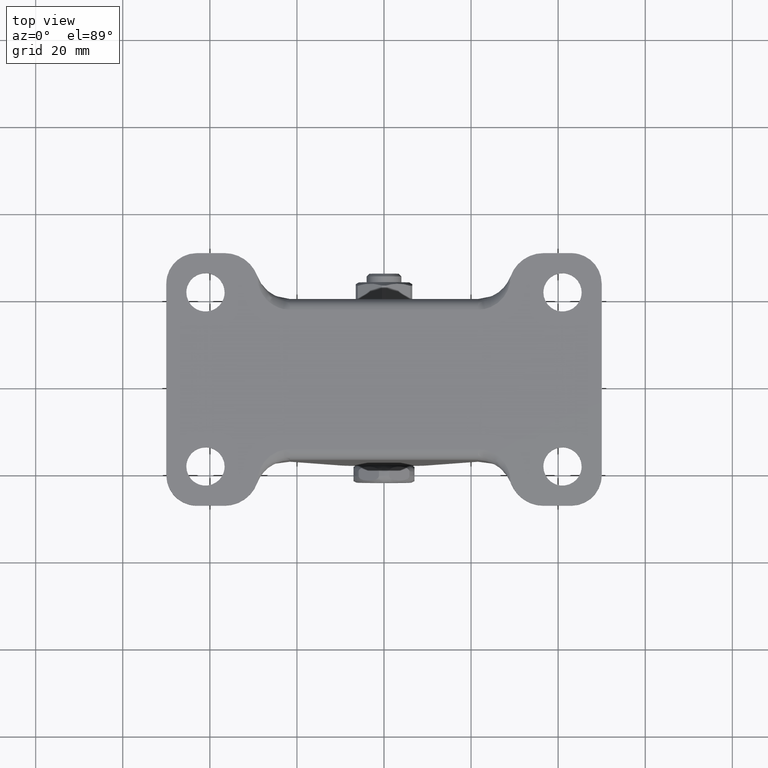
[diagram: clean part render]
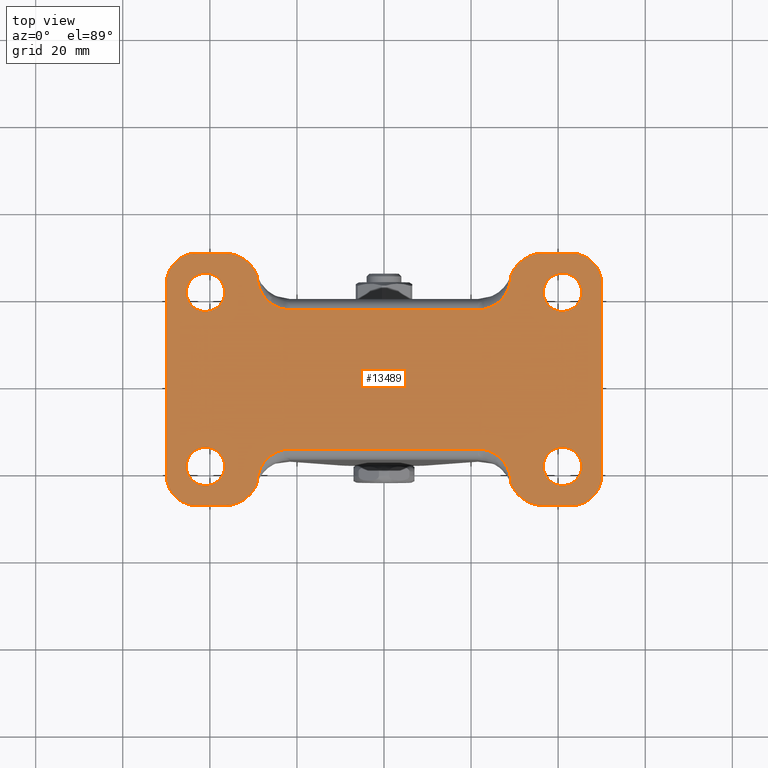
[diagram: same view with one face highlighted and labeled with its STEP entity id]
A machine part, top view. The second image highlights one B-rep face of the part: STEP entity #13489.
In plain terms, the highlighted face is a freeform B-spline surface patch.
Its self-contained STEP definition (entity closure, byte-faithful):
#10638=CARTESIAN_POINT('',(40.480649355666593,15.630757984703701,72.0));
#10639=VERTEX_POINT('',#10638);
#10645=CARTESIAN_POINT('',(45.400000100000007,20.0,72.0));
#10646=VERTEX_POINT('',#10645);
#10647=CARTESIAN_POINT('',(40.480649355666586,15.630757984703703,71.999999999999986));
#10648=CARTESIAN_POINT('',(40.739413867568501,15.599999900000006,72.0));
#10649=CARTESIAN_POINT('',(41.0,15.599999900000000,72.0));
#10650=CARTESIAN_POINT('',(45.400000100000014,15.599999900000011,72.0));
#10651=CARTESIAN_POINT('',(45.400000100000007,20.0,72.0));
#10659=(BOUNDED_CURVE()B_SPLINE_CURVE(2,(#10647,#10648,#10649,#10650,#10651),.UNSPECIFIED.,.F.,.U.)B_SPLINE_CURVE_WITH_KNOTS((3,2,3),(0.229562473512530,0.250000000000000,0.500000000000000),.UNSPECIFIED.)CURVE()GEOMETRIC_REPRESENTATION_ITEM()RATIONAL_B_SPLINE_CURVE((0.956026754181782,0.976055948329999,1.0,0.707106781186547,1.0))REPRESENTATION_ITEM(''));
#10660=EDGE_CURVE('',#10639,#10646,#10659,.T.);
#10662=CARTESIAN_POINT('',(41.268613580939807,24.391793212815770,72.000000000000014));
#10663=VERTEX_POINT('',#10662);
#10664=CARTESIAN_POINT('',(45.400000100000007,20.0,72.0));
#10665=CARTESIAN_POINT('',(45.400000100000000,24.139106786790830,72.0));
#10666=CARTESIAN_POINT('',(41.268613580939814,24.391793212815770,72.000000000000014));
#10674=(BOUNDED_CURVE()B_SPLINE_CURVE(2,(#10664,#10665,#10666),.UNSPECIFIED.,.F.,.U.)B_SPLINE_CURVE_WITH_KNOTS((3,3),(0.500000000000000,0.739332962172696),.UNSPECIFIED.)CURVE()GEOMETRIC_REPRESENTATION_ITEM()RATIONAL_B_SPLINE_CURVE((1.0,0.719603993364323,0.976072041524738))REPRESENTATION_ITEM(''));
#10675=EDGE_CURVE('',#10646,#10663,#10674,.T.);
#10749=CARTESIAN_POINT('',(36.599999900000000,20.0,72.0));
#10750=VERTEX_POINT('',#10749);
#10751=CARTESIAN_POINT('',(41.268613580939807,24.391793212815777,72.000000000000014));
#10752=CARTESIAN_POINT('',(41.134432162453123,24.400000100000000,72.0));
#10753=CARTESIAN_POINT('',(41.0,24.400000100000000,72.0));
#10754=CARTESIAN_POINT('',(36.599999900000000,24.400000100000007,72.0));
#10755=CARTESIAN_POINT('',(36.599999900000000,20.0,72.0));
#10763=(BOUNDED_CURVE()B_SPLINE_CURVE(2,(#10751,#10752,#10753,#10754,#10755),.UNSPECIFIED.,.F.,.U.)B_SPLINE_CURVE_WITH_KNOTS((3,2,3),(0.739332962172696,0.750000000000000,1.0),.UNSPECIFIED.)CURVE()GEOMETRIC_REPRESENTATION_ITEM()RATIONAL_B_SPLINE_CURVE((0.976072041524739,0.987502787822225,1.0,0.707106781186547,1.0))REPRESENTATION_ITEM(''));
#10764=EDGE_CURVE('',#10663,#10750,#10763,.T.);
#10766=CARTESIAN_POINT('',(36.599999900000000,20.0,72.0));
#10767=CARTESIAN_POINT('',(36.599999899999993,16.092031997069046,72.0));
#10768=CARTESIAN_POINT('',(40.480649355666593,15.630757984703697,72.0));
#10776=(BOUNDED_CURVE()B_SPLINE_CURVE(2,(#10766,#10767,#10768),.UNSPECIFIED.,.F.,.U.)B_SPLINE_CURVE_WITH_KNOTS((3,3),(0.0,0.229562473512530),.UNSPECIFIED.)CURVE()GEOMETRIC_REPRESENTATION_ITEM()RATIONAL_B_SPLINE_CURVE((1.0,0.731050832856548,0.956026754181782))REPRESENTATION_ITEM(''));
#10777=EDGE_CURVE('',#10750,#10639,#10776,.T.);
#10824=CARTESIAN_POINT('',(-41.519350644333407,15.630757984703701,72.000000000000014));
#10825=VERTEX_POINT('',#10824);
#10831=CARTESIAN_POINT('',(-36.599999900000000,20.0,72.0));
#10832=VERTEX_POINT('',#10831);
#10833=CARTESIAN_POINT('',(-41.519350644333414,15.630757984703703,72.000000000000014));
#10834=CARTESIAN_POINT('',(-41.260586132431492,15.599999900000006,72.0));
#10835=CARTESIAN_POINT('',(-41.0,15.599999900000000,72.0));
#10836=CARTESIAN_POINT('',(-36.599999900000000,15.599999900000011,72.0));
#10837=CARTESIAN_POINT('',(-36.599999900000000,20.0,72.0));
#10845=(BOUNDED_CURVE()B_SPLINE_CURVE(2,(#10833,#10834,#10835,#10836,#10837),.UNSPECIFIED.,.F.,.U.)B_SPLINE_CURVE_WITH_KNOTS((3,2,3),(0.229562473512530,0.250000000000000,0.500000000000000),.UNSPECIFIED.)CURVE()GEOMETRIC_REPRESENTATION_ITEM()RATIONAL_B_SPLINE_CURVE((0.956026754181782,0.976055948329999,1.0,0.707106781186547,1.0))REPRESENTATION_ITEM(''));
#10846=EDGE_CURVE('',#10825,#10832,#10845,.T.);
#10848=CARTESIAN_POINT('',(-40.731386419060200,24.391793212815770,72.0));
#10849=VERTEX_POINT('',#10848);
#10850=CARTESIAN_POINT('',(-36.599999900000000,20.0,72.0));
#10851=CARTESIAN_POINT('',(-36.599999899999993,24.139106786790830,72.0));
#10852=CARTESIAN_POINT('',(-40.731386419060200,24.391793212815770,72.0));
#10860=(BOUNDED_CURVE()B_SPLINE_CURVE(2,(#10850,#10851,#10852),.UNSPECIFIED.,.F.,.U.)B_SPLINE_CURVE_WITH_KNOTS((3,3),(0.500000000000000,0.739332962172696),.UNSPECIFIED.)CURVE()GEOMETRIC_REPRESENTATION_ITEM()RATIONAL_B_SPLINE_CURVE((1.0,0.719603993364323,0.976072041524738))REPRESENTATION_ITEM(''));
#10861=EDGE_CURVE('',#10832,#10849,#10860,.T.);
#10935=CARTESIAN_POINT('',(-45.400000100000007,20.0,72.0));
#10936=VERTEX_POINT('',#10935);
#10937=CARTESIAN_POINT('',(-40.731386419060208,24.391793212815777,72.0));
#10938=CARTESIAN_POINT('',(-40.865567837546877,24.400000100000000,72.0));
#10939=CARTESIAN_POINT('',(-41.0,24.400000100000000,72.0));
#10940=CARTESIAN_POINT('',(-45.400000100000014,24.400000100000007,72.0));
#10941=CARTESIAN_POINT('',(-45.400000100000007,20.0,72.0));
#10949=(BOUNDED_CURVE()B_SPLINE_CURVE(2,(#10937,#10938,#10939,#10940,#10941),.UNSPECIFIED.,.F.,.U.)B_SPLINE_CURVE_WITH_KNOTS((3,2,3),(0.739332962172696,0.750000000000000,1.0),.UNSPECIFIED.)CURVE()GEOMETRIC_REPRESENTATION_ITEM()RATIONAL_B_SPLINE_CURVE((0.976072041524739,0.987502787822225,1.0,0.707106781186547,1.0))REPRESENTATION_ITEM(''));
#10950=EDGE_CURVE('',#10849,#10936,#10949,.T.);
#10952=CARTESIAN_POINT('',(-45.400000100000007,20.0,72.0));
#10953=CARTESIAN_POINT('',(-45.400000100000000,16.092031997069046,72.0));
#10954=CARTESIAN_POINT('',(-41.519350644333414,15.630757984703697,72.000000000000014));
#10962=(BOUNDED_CURVE()B_SPLINE_CURVE(2,(#10952,#10953,#10954),.UNSPECIFIED.,.F.,.U.)B_SPLINE_CURVE_WITH_KNOTS((3,3),(0.0,0.229562473512530),.UNSPECIFIED.)CURVE()GEOMETRIC_REPRESENTATION_ITEM()RATIONAL_B_SPLINE_CURVE((1.0,0.731050832856548,0.956026754181782))REPRESENTATION_ITEM(''));
#10963=EDGE_CURVE('',#10936,#10825,#10962,.T.);
#11010=CARTESIAN_POINT('',(-41.519350644333407,-24.369242015296301,72.0));
#11011=VERTEX_POINT('',#11010);
#11017=CARTESIAN_POINT('',(-36.599999900000000,-20.0,72.0));
#11018=VERTEX_POINT('',#11017);
#11019=CARTESIAN_POINT('',(-41.519350644333414,-24.369242015296301,71.999999999999986));
#11020=CARTESIAN_POINT('',(-41.260586132431492,-24.400000100000003,71.999999999999986));
#11021=CARTESIAN_POINT('',(-41.0,-24.400000100000000,72.0));
#11022=CARTESIAN_POINT('',(-36.599999900000000,-24.400000100000007,72.0));
#11023=CARTESIAN_POINT('',(-36.599999900000000,-20.0,72.0));
#11031=(BOUNDED_CURVE()B_SPLINE_CURVE(2,(#11019,#11020,#11021,#11022,#11023),.UNSPECIFIED.,.F.,.U.)B_SPLINE_CURVE_WITH_KNOTS((3,2,3),(0.229562473512530,0.250000000000000,0.500000000000000),.UNSPECIFIED.)CURVE()GEOMETRIC_REPRESENTATION_ITEM()RATIONAL_B_SPLINE_CURVE((0.956026754181782,0.976055948329999,1.0,0.707106781186547,1.0))REPRESENTATION_ITEM(''));
#11032=EDGE_CURVE('',#11011,#11018,#11031,.T.);
#11034=CARTESIAN_POINT('',(-40.731386419060200,-15.608206787184230,72.000000000000014));
#11035=VERTEX_POINT('',#11034);
#11036=CARTESIAN_POINT('',(-36.599999900000000,-20.0,72.0));
#11037=CARTESIAN_POINT('',(-36.599999899999993,-15.860893213209179,72.0));
#11038=CARTESIAN_POINT('',(-40.731386419060200,-15.608206787184232,72.000000000000014));
#11046=(BOUNDED_CURVE()B_SPLINE_CURVE(2,(#11036,#11037,#11038),.UNSPECIFIED.,.F.,.U.)B_SPLINE_CURVE_WITH_KNOTS((3,3),(0.500000000000000,0.739332962172696),.UNSPECIFIED.)CURVE()GEOMETRIC_REPRESENTATION_ITEM()RATIONAL_B_SPLINE_CURVE((1.0,0.719603993364323,0.976072041524738))REPRESENTATION_ITEM(''));
#11047=EDGE_CURVE('',#11018,#11035,#11046,.T.);
#11121=CARTESIAN_POINT('',(-45.400000100000007,-20.0,72.0));
#11122=VERTEX_POINT('',#11121);
#11123=CARTESIAN_POINT('',(-40.731386419060208,-15.608206787184226,72.000000000000014));
#11124=CARTESIAN_POINT('',(-40.865567837546877,-15.599999900000006,72.0));
#11125=CARTESIAN_POINT('',(-41.0,-15.599999900000000,72.0));
#11126=CARTESIAN_POINT('',(-45.400000100000014,-15.599999900000011,72.0));
#11127=CARTESIAN_POINT('',(-45.400000100000007,-20.0,72.0));
#11135=(BOUNDED_CURVE()B_SPLINE_CURVE(2,(#11123,#11124,#11125,#11126,#11127),.UNSPECIFIED.,.F.,.U.)B_SPLINE_CURVE_WITH_KNOTS((3,2,3),(0.739332962172696,0.750000000000000,1.0),.UNSPECIFIED.)CURVE()GEOMETRIC_REPRESENTATION_ITEM()RATIONAL_B_SPLINE_CURVE((0.976072041524739,0.987502787822225,1.0,0.707106781186547,1.0))REPRESENTATION_ITEM(''));
#11136=EDGE_CURVE('',#11035,#11122,#11135,.T.);
#11138=CARTESIAN_POINT('',(-45.400000100000007,-20.0,72.0));
#11139=CARTESIAN_POINT('',(-45.400000100000000,-23.907968002930964,72.0));
#11140=CARTESIAN_POINT('',(-41.519350644333414,-24.369242015296308,72.0));
#11148=(BOUNDED_CURVE()B_SPLINE_CURVE(2,(#11138,#11139,#11140),.UNSPECIFIED.,.F.,.U.)B_SPLINE_CURVE_WITH_KNOTS((3,3),(0.0,0.229562473512530),.UNSPECIFIED.)CURVE()GEOMETRIC_REPRESENTATION_ITEM()RATIONAL_B_SPLINE_CURVE((1.0,0.731050832856548,0.956026754181782))REPRESENTATION_ITEM(''));
#11149=EDGE_CURVE('',#11122,#11011,#11148,.T.);
#11196=CARTESIAN_POINT('',(40.480649355666593,-24.369242015296301,72.0));
#11197=VERTEX_POINT('',#11196);
#11203=CARTESIAN_POINT('',(45.400000100000007,-20.0,72.0));
#11204=VERTEX_POINT('',#11203);
#11205=CARTESIAN_POINT('',(40.480649355666586,-24.369242015296301,71.999999999999986));
#11206=CARTESIAN_POINT('',(40.739413867568501,-24.400000100000003,72.0));
#11207=CARTESIAN_POINT('',(41.0,-24.400000100000000,72.0));
#11208=CARTESIAN_POINT('',(45.400000100000014,-24.400000100000007,72.0));
#11209=CARTESIAN_POINT('',(45.400000100000007,-20.0,72.0));
#11217=(BOUNDED_CURVE()B_SPLINE_CURVE(2,(#11205,#11206,#11207,#11208,#11209),.UNSPECIFIED.,.F.,.U.)B_SPLINE_CURVE_WITH_KNOTS((3,2,3),(0.229562473512530,0.250000000000000,0.500000000000000),.UNSPECIFIED.)CURVE()GEOMETRIC_REPRESENTATION_ITEM()RATIONAL_B_SPLINE_CURVE((0.956026754181782,0.976055948329999,1.0,0.707106781186547,1.0))REPRESENTATION_ITEM(''));
#11218=EDGE_CURVE('',#11197,#11204,#11217,.T.);
#11220=CARTESIAN_POINT('',(41.268613580939807,-15.608206787184230,72.000000000000028));
#11221=VERTEX_POINT('',#11220);
#11222=CARTESIAN_POINT('',(45.400000100000007,-20.0,72.0));
#11223=CARTESIAN_POINT('',(45.400000100000000,-15.860893213209179,72.0));
#11224=CARTESIAN_POINT('',(41.268613580939814,-15.608206787184232,72.000000000000028));
#11232=(BOUNDED_CURVE()B_SPLINE_CURVE(2,(#11222,#11223,#11224),.UNSPECIFIED.,.F.,.U.)B_SPLINE_CURVE_WITH_KNOTS((3,3),(0.500000000000000,0.739332962172696),.UNSPECIFIED.)CURVE()GEOMETRIC_REPRESENTATION_ITEM()RATIONAL_B_SPLINE_CURVE((1.0,0.719603993364323,0.976072041524738))REPRESENTATION_ITEM(''));
#11233=EDGE_CURVE('',#11204,#11221,#11232,.T.);
#11307=CARTESIAN_POINT('',(36.599999900000000,-20.0,72.0));
#11308=VERTEX_POINT('',#11307);
#11309=CARTESIAN_POINT('',(41.268613580939807,-15.608206787184226,72.000000000000028));
#11310=CARTESIAN_POINT('',(41.134432162453123,-15.599999900000006,72.0));
#11311=CARTESIAN_POINT('',(41.0,-15.599999900000000,72.0));
#11312=CARTESIAN_POINT('',(36.599999900000000,-15.599999900000011,72.0));
#11313=CARTESIAN_POINT('',(36.599999900000000,-20.0,72.0));
#11321=(BOUNDED_CURVE()B_SPLINE_CURVE(2,(#11309,#11310,#11311,#11312,#11313),.UNSPECIFIED.,.F.,.U.)B_SPLINE_CURVE_WITH_KNOTS((3,2,3),(0.739332962172696,0.750000000000000,1.0),.UNSPECIFIED.)CURVE()GEOMETRIC_REPRESENTATION_ITEM()RATIONAL_B_SPLINE_CURVE((0.976072041524739,0.987502787822225,1.0,0.707106781186547,1.0))REPRESENTATION_ITEM(''));
#11322=EDGE_CURVE('',#11221,#11308,#11321,.T.);
#11324=CARTESIAN_POINT('',(36.599999900000000,-20.0,72.0));
#11325=CARTESIAN_POINT('',(36.599999899999993,-23.907968002930964,72.0));
#11326=CARTESIAN_POINT('',(40.480649355666593,-24.369242015296308,72.0));
#11334=(BOUNDED_CURVE()B_SPLINE_CURVE(2,(#11324,#11325,#11326),.UNSPECIFIED.,.F.,.U.)B_SPLINE_CURVE_WITH_KNOTS((3,3),(0.0,0.229562473512530),.UNSPECIFIED.)CURVE()GEOMETRIC_REPRESENTATION_ITEM()RATIONAL_B_SPLINE_CURVE((1.0,0.731050832856548,0.956026754181782))REPRESENTATION_ITEM(''));
#11335=EDGE_CURVE('',#11308,#11197,#11334,.T.);
#12123=CARTESIAN_POINT('',(-21.590020549778849,-15.999980000000001,72.0));
#12124=VERTEX_POINT('',#12123);
#12138=CARTESIAN_POINT('',(-29.102518009696151,-23.749993471923052,72.0));
#12139=VERTEX_POINT('',#12138);
#12140=CARTESIAN_POINT('',(-29.102518009696151,-23.749993471923052,72.0));
#12141=CARTESIAN_POINT('',(-29.124434196517711,-22.367632242303991,72.0));
#12142=CARTESIAN_POINT('',(-28.657625978807619,-21.061308647487991,72.0));
#12143=CARTESIAN_POINT('',(-28.154351266947650,-19.652936631241221,72.0));
#12144=CARTESIAN_POINT('',(-27.157142996489860,-18.533722371588961,72.0));
#12145=CARTESIAN_POINT('',(-26.122198754784449,-17.372155237042499,72.0));
#12146=CARTESIAN_POINT('',(-24.675544332181069,-16.698311954679820,72.0));
#12147=CARTESIAN_POINT('',(-23.176782604990208,-16.000197390517091,72.0));
#12148=CARTESIAN_POINT('',(-21.590020549778849,-15.999980000000001,72.0));
#12149=B_SPLINE_CURVE_WITH_KNOTS('',2,(#12140,#12141,#12142,#12143,#12144,#12145,#12146,#12147,#12148),.UNSPECIFIED.,.F.,.U.,(3,2,2,2,3),(0.000000105877122,0.250000000000000,0.500000000000000,0.750000000000000,1.0),.UNSPECIFIED.);
#12150=EDGE_CURVE('',#12139,#12124,#12149,.T.);
#12197=CARTESIAN_POINT('',(21.590029450221252,-15.999980000000001,72.0));
#12198=VERTEX_POINT('',#12197);
#12212=CARTESIAN_POINT('',(-21.590020549778849,-15.999980000000001,72.0));
#12213=CARTESIAN_POINT('',(21.590029450221252,-15.999980000000001,72.0));
#12214=QUASI_UNIFORM_CURVE('',1,(#12212,#12213),.UNSPECIFIED.,.F.,.U.);
#12215=EDGE_CURVE('',#12124,#12198,#12214,.T.);
#12258=CARTESIAN_POINT('',(29.102521846314598,-23.749986134723851,72.0));
#12259=VERTEX_POINT('',#12258);
#12289=CARTESIAN_POINT('',(21.590029450221252,-15.999980000000001,72.0));
#12290=CARTESIAN_POINT('',(23.175862889890801,-16.000197092444150,72.0));
#12291=CARTESIAN_POINT('',(24.675550057504100,-16.698310812313998,72.0));
#12292=CARTESIAN_POINT('',(26.120715125961102,-17.371044155343199,72.0));
#12293=CARTESIAN_POINT('',(27.157146486000251,-18.533718920057652,72.0));
#12294=CARTESIAN_POINT('',(28.153448112101749,-19.651375914408401,72.0));
#12295=CARTESIAN_POINT('',(28.657628827638352,-21.061302455086949,72.0));
#12296=CARTESIAN_POINT('',(29.124451102283299,-22.366757214699000,72.0));
#12297=CARTESIAN_POINT('',(29.102521846314598,-23.749986134723851,72.0));
#12298=B_SPLINE_CURVE_WITH_KNOTS('',2,(#12289,#12290,#12291,#12292,#12293,#12294,#12295,#12296,#12297),.UNSPECIFIED.,.F.,.U.,(3,2,2,2,3),(0.0,0.250000000000000,0.500000000000000,0.750000000000000,1.0),.UNSPECIFIED.);
#12299=EDGE_CURVE('',#12198,#12259,#12298,.T.);
#12337=CARTESIAN_POINT('',(-29.102516738778501,23.749990000000000,72.0));
#12338=VERTEX_POINT('',#12337);
#12370=CARTESIAN_POINT('',(-21.590023477556901,15.999980000000001,72.0));
#12371=VERTEX_POINT('',#12370);
#12372=CARTESIAN_POINT('',(-21.590023477556901,15.999980000000001,72.0));
#12373=CARTESIAN_POINT('',(-23.175857527652902,16.000197175518650,72.0));
#12374=CARTESIAN_POINT('',(-24.675545179561201,16.698311339204000,72.0));
#12375=CARTESIAN_POINT('',(-26.120710723254199,17.371045113892549,72.0));
#12376=CARTESIAN_POINT('',(-27.157142221486151,18.533720497982049,72.0));
#12377=CARTESIAN_POINT('',(-28.153443990701799,19.651378099249300,72.0));
#12378=CARTESIAN_POINT('',(-28.657624475090099,21.061305274881398,72.0));
#12379=CARTESIAN_POINT('',(-29.124446538283149,22.366760629582451,72.0));
#12380=CARTESIAN_POINT('',(-29.102516738778501,23.749990000000000,72.0));
#12381=B_SPLINE_CURVE_WITH_KNOTS('',2,(#12372,#12373,#12374,#12375,#12376,#12377,#12378,#12379,#12380),.UNSPECIFIED.,.F.,.U.,(3,2,2,2,3),(0.0,0.250000000000000,0.500000000000000,0.750000000000000,1.0),.UNSPECIFIED.);
#12382=EDGE_CURVE('',#12371,#12338,#12381,.T.);
#12414=CARTESIAN_POINT('',(21.590023477556802,15.999980000000001,72.0));
#12415=VERTEX_POINT('',#12414);
#12437=CARTESIAN_POINT('',(21.590023477556802,15.999980000000001,72.0));
#12438=CARTESIAN_POINT('',(-21.590023477556901,15.999980000000001,72.0));
#12439=QUASI_UNIFORM_CURVE('',1,(#12437,#12438),.UNSPECIFIED.,.F.,.U.);
#12440=EDGE_CURVE('',#12415,#12371,#12439,.T.);
#12477=CARTESIAN_POINT('',(29.102516738778402,23.749990000000000,72.0));
#12478=VERTEX_POINT('',#12477);
#12479=CARTESIAN_POINT('',(29.102516738778402,23.749990000000000,72.0));
#12480=CARTESIAN_POINT('',(29.124432775785849,22.367628702451551,72.0));
#12481=CARTESIAN_POINT('',(28.657624475090000,21.061305274881398,72.0));
#12482=CARTESIAN_POINT('',(28.154349884019801,19.652934027335451,72.0));
#12483=CARTESIAN_POINT('',(27.157142221486101,18.533720497982049,72.0));
#12484=CARTESIAN_POINT('',(26.122198599016350,17.372154108246349,72.0));
#12485=CARTESIAN_POINT('',(24.675545179560849,16.698311339204000,72.0));
#12486=CARTESIAN_POINT('',(23.176784482228800,16.000197302462499,72.0));
#12487=CARTESIAN_POINT('',(21.590023477556802,15.999980000000001,72.0));
#12488=B_SPLINE_CURVE_WITH_KNOTS('',2,(#12479,#12480,#12481,#12482,#12483,#12484,#12485,#12486,#12487),.UNSPECIFIED.,.F.,.U.,(3,2,2,2,3),(0.0,0.250000000000000,0.500000000000000,0.750000000000000,1.0),.UNSPECIFIED.);
#12489=EDGE_CURVE('',#12478,#12415,#12488,.T.);
#13294=CARTESIAN_POINT('',(-54.994999806180601,31.897099887584741,72.0));
#13295=CARTESIAN_POINT('',(54.995002488389623,31.897099887584741,72.0));
#13296=CARTESIAN_POINT('',(-54.994999806180601,-31.897101443265971,72.0));
#13297=CARTESIAN_POINT('',(54.995002488389623,-31.897101443265971,72.0));
#13298=B_SPLINE_SURFACE_WITH_KNOTS('',1,1,((#13294,#13296),(#13295,#13297)),.UNSPECIFIED.,.F.,.F.,.U.,(2,2),(2,2),(0.0,109.990002294570200),(0.0,63.794201330850719),.UNSPECIFIED.);
#13299=CARTESIAN_POINT('',(-36.615010000000012,-29.0,72.0));
#13300=VERTEX_POINT('',#13299);
#13301=CARTESIAN_POINT('',(-36.615010000000012,-29.0,72.0));
#13302=CARTESIAN_POINT('',(-31.024314891263348,-29.000000000000004,72.0));
#13303=CARTESIAN_POINT('',(-29.102518009696091,-23.749993471923069,72.0));
#13311=(BOUNDED_CURVE()B_SPLINE_CURVE(2,(#13301,#13302,#13303),.UNSPECIFIED.,.F.,.U.)CURVE()GEOMETRIC_REPRESENTATION_ITEM()QUASI_UNIFORM_CURVE()RATIONAL_B_SPLINE_CURVE((1.0,0.819679566657113,1.0))REPRESENTATION_ITEM(''));
#13312=EDGE_CURVE('',#13300,#12139,#13311,.T.);
#13313=ORIENTED_EDGE('',*,*,#13312,.T.);
#13314=ORIENTED_EDGE('',*,*,#12150,.T.);
#13315=ORIENTED_EDGE('',*,*,#12215,.T.);
#13316=ORIENTED_EDGE('',*,*,#12299,.T.);
#13317=CARTESIAN_POINT('',(36.615012792526848,-28.999999999999499,72.0));
#13318=VERTEX_POINT('',#13317);
#13319=CARTESIAN_POINT('',(29.102521846314598,-23.749986134723851,72.0));
#13320=CARTESIAN_POINT('',(31.024314335442501,-29.000000898796870,72.0));
#13321=CARTESIAN_POINT('',(36.615012792526848,-28.999999999999499,72.0));
#13329=(BOUNDED_CURVE()B_SPLINE_CURVE(2,(#13319,#13320,#13321),.UNSPECIFIED.,.F.,.U.)CURVE()GEOMETRIC_REPRESENTATION_ITEM()QUASI_UNIFORM_CURVE()RATIONAL_B_SPLINE_CURVE((1.0,0.819679267222085,1.0))REPRESENTATION_ITEM(''));
#13330=EDGE_CURVE('',#12259,#13318,#13329,.T.);
#13331=ORIENTED_EDGE('',*,*,#13330,.T.);
#13332=CARTESIAN_POINT('',(43.0,-29.0,72.0));
#13333=VERTEX_POINT('',#13332);
#13334=CARTESIAN_POINT('',(36.615012792526848,-28.999999999999499,72.0));
#13335=CARTESIAN_POINT('',(43.0,-29.0,72.0));
#13336=QUASI_UNIFORM_CURVE('',1,(#13334,#13335),.UNSPECIFIED.,.F.,.U.);
#13337=EDGE_CURVE('',#13318,#13333,#13336,.T.);
#13338=ORIENTED_EDGE('',*,*,#13337,.T.);
#13339=CARTESIAN_POINT('',(50.0,-22.0,72.0));
#13340=VERTEX_POINT('',#13339);
#13341=CARTESIAN_POINT('',(43.0,-29.0,72.0));
#13342=CARTESIAN_POINT('',(49.999999999999993,-28.999999999999989,72.0));
#13343=CARTESIAN_POINT('',(49.999999999999993,-22.0,72.0));
#13351=(BOUNDED_CURVE()B_SPLINE_CURVE(2,(#13341,#13342,#13343),.UNSPECIFIED.,.F.,.U.)CURVE()GEOMETRIC_REPRESENTATION_ITEM()QUASI_UNIFORM_CURVE()RATIONAL_B_SPLINE_CURVE((1.0,0.707106781186547,1.0))REPRESENTATION_ITEM(''));
#13352=EDGE_CURVE('',#13333,#13340,#13351,.T.);
#13353=ORIENTED_EDGE('',*,*,#13352,.T.);
#13354=CARTESIAN_POINT('',(50.0,22.0,72.0));
#13355=VERTEX_POINT('',#13354);
#13356=CARTESIAN_POINT('',(50.0,-22.0,72.0));
#13357=CARTESIAN_POINT('',(50.0,22.0,72.0));
#13358=QUASI_UNIFORM_CURVE('',1,(#13356,#13357),.UNSPECIFIED.,.F.,.U.);
#13359=EDGE_CURVE('',#13340,#13355,#13358,.T.);
#13360=ORIENTED_EDGE('',*,*,#13359,.T.);
#13361=CARTESIAN_POINT('',(43.000002199114853,28.999999999999648,72.0));
#13362=VERTEX_POINT('',#13361);
#13363=CARTESIAN_POINT('',(49.999999999999993,22.0,72.0));
#13364=CARTESIAN_POINT('',(49.999999999999986,28.999997800885495,72.0));
#13365=CARTESIAN_POINT('',(43.000002199114853,28.999999999999659,72.0));
#13373=(BOUNDED_CURVE()B_SPLINE_CURVE(2,(#13363,#13364,#13365),.UNSPECIFIED.,.F.,.U.)CURVE()GEOMETRIC_REPRESENTATION_ITEM()QUASI_UNIFORM_CURVE()RATIONAL_B_SPLINE_CURVE((1.0,0.707106892258612,1.0))REPRESENTATION_ITEM(''));
#13374=EDGE_CURVE('',#13355,#13362,#13373,.T.);
#13375=ORIENTED_EDGE('',*,*,#13374,.T.);
#13376=CARTESIAN_POINT('',(36.615010000000012,29.0,72.0));
#13377=VERTEX_POINT('',#13376);
#13378=CARTESIAN_POINT('',(43.000002199114853,28.999999999999648,72.0));
#13379=CARTESIAN_POINT('',(36.615010000000012,29.0,72.0));
#13380=QUASI_UNIFORM_CURVE('',1,(#13378,#13379),.UNSPECIFIED.,.F.,.U.);
#13381=EDGE_CURVE('',#13362,#13377,#13380,.T.);
#13382=ORIENTED_EDGE('',*,*,#13381,.T.);
#13383=CARTESIAN_POINT('',(36.615010000000012,29.0,72.0));
#13384=CARTESIAN_POINT('',(31.024312139837082,29.000000000000004,72.000000000000014));
#13385=CARTESIAN_POINT('',(29.102516738778402,23.749990000000000,72.0));
#13393=(BOUNDED_CURVE()B_SPLINE_CURVE(2,(#13383,#13384,#13385),.UNSPECIFIED.,.F.,.U.)CURVE()GEOMETRIC_REPRESENTATION_ITEM()QUASI_UNIFORM_CURVE()RATIONAL_B_SPLINE_CURVE((1.0,0.819679434291235,1.0))REPRESENTATION_ITEM(''));
#13394=EDGE_CURVE('',#13377,#12478,#13393,.T.);
#13395=ORIENTED_EDGE('',*,*,#13394,.T.);
#13396=ORIENTED_EDGE('',*,*,#12489,.T.);
#13397=ORIENTED_EDGE('',*,*,#12440,.T.);
#13398=ORIENTED_EDGE('',*,*,#12382,.T.);
#13399=CARTESIAN_POINT('',(-36.615007486725958,28.999999999999599,72.0));
#13400=VERTEX_POINT('',#13399);
#13401=CARTESIAN_POINT('',(-29.102516738778409,23.749990000000029,72.0));
#13402=CARTESIAN_POINT('',(-31.024311496908343,28.999998243630714,72.000000000000014));
#13403=CARTESIAN_POINT('',(-36.615007486725958,28.999999999999609,72.0));
#13411=(BOUNDED_CURVE()B_SPLINE_CURVE(2,(#13401,#13402,#13403),.UNSPECIFIED.,.F.,.U.)CURVE()GEOMETRIC_REPRESENTATION_ITEM()QUASI_UNIFORM_CURVE()RATIONAL_B_SPLINE_CURVE((1.0,0.819679524269973,1.0))REPRESENTATION_ITEM(''));
#13412=EDGE_CURVE('',#12338,#13400,#13411,.T.);
#13413=ORIENTED_EDGE('',*,*,#13412,.T.);
#13414=CARTESIAN_POINT('',(-43.0,29.0,72.0));
#13415=VERTEX_POINT('',#13414);
#13416=CARTESIAN_POINT('',(-36.615007486725958,28.999999999999599,72.0));
#13417=CARTESIAN_POINT('',(-43.0,29.0,72.0));
#13418=QUASI_UNIFORM_CURVE('',1,(#13416,#13417),.UNSPECIFIED.,.F.,.U.);
#13419=EDGE_CURVE('',#13400,#13415,#13418,.T.);
#13420=ORIENTED_EDGE('',*,*,#13419,.T.);
#13421=CARTESIAN_POINT('',(-49.999999999998401,22.000004886921900,72.0));
#13422=VERTEX_POINT('',#13421);
#13423=CARTESIAN_POINT('',(-43.0,29.0,72.0));
#13424=CARTESIAN_POINT('',(-49.999995113079805,28.999999999999986,72.0));
#13425=CARTESIAN_POINT('',(-49.999999999998288,22.000004886921900,72.0));
#13433=(BOUNDED_CURVE()B_SPLINE_CURVE(2,(#13423,#13424,#13425),.UNSPECIFIED.,.F.,.U.)CURVE()GEOMETRIC_REPRESENTATION_ITEM()QUASI_UNIFORM_CURVE()RATIONAL_B_SPLINE_CURVE((1.0,0.707107028013334,1.0))REPRESENTATION_ITEM(''));
#13434=EDGE_CURVE('',#13415,#13422,#13433,.T.);
#13435=ORIENTED_EDGE('',*,*,#13434,.T.);
#13436=CARTESIAN_POINT('',(-50.0,-22.0,72.0));
#13437=VERTEX_POINT('',#13436);
#13438=CARTESIAN_POINT('',(-49.999999999998401,22.000004886921900,72.0));
#13439=CARTESIAN_POINT('',(-50.0,-22.0,72.0));
#13440=QUASI_UNIFORM_CURVE('',1,(#13438,#13439),.UNSPECIFIED.,.F.,.U.);
#13441=EDGE_CURVE('',#13422,#13437,#13440,.T.);
#13442=ORIENTED_EDGE('',*,*,#13441,.T.);
#13443=CARTESIAN_POINT('',(-43.000003665191500,-28.999999999999051,72.0));
#13444=VERTEX_POINT('',#13443);
#13445=CARTESIAN_POINT('',(-49.999999999999993,-22.0,72.0));
#13446=CARTESIAN_POINT('',(-49.999999999999993,-28.999996334809456,72.0));
#13447=CARTESIAN_POINT('',(-43.000003665191500,-28.999999999999041,72.0));
#13455=(BOUNDED_CURVE()B_SPLINE_CURVE(2,(#13445,#13446,#13447),.UNSPECIFIED.,.F.,.U.)CURVE()GEOMETRIC_REPRESENTATION_ITEM()QUASI_UNIFORM_CURVE()RATIONAL_B_SPLINE_CURVE((1.0,0.707106966306649,1.0))REPRESENTATION_ITEM(''));
#13456=EDGE_CURVE('',#13437,#13444,#13455,.T.);
#13457=ORIENTED_EDGE('',*,*,#13456,.T.);
#13458=CARTESIAN_POINT('',(-43.000003665191500,-28.999999999999051,72.0));
#13459=CARTESIAN_POINT('',(-36.615010000000012,-29.0,72.0));
#13460=QUASI_UNIFORM_CURVE('',1,(#13458,#13459),.UNSPECIFIED.,.F.,.U.);
#13461=EDGE_CURVE('',#13444,#13300,#13460,.T.);
#13462=ORIENTED_EDGE('',*,*,#13461,.T.);
#13463=EDGE_LOOP('',(#13313,#13314,#13315,#13316,#13331,#13338,#13353,#13360,#13375,#13382,#13395,#13396,#13397,#13398,#13413,#13420,#13435,#13442,#13457,#13462));
#13464=FACE_OUTER_BOUND('',#13463,.T.);
#13465=ORIENTED_EDGE('',*,*,#11233,.F.);
#13466=ORIENTED_EDGE('',*,*,#11218,.F.);
#13467=ORIENTED_EDGE('',*,*,#11335,.F.);
#13468=ORIENTED_EDGE('',*,*,#11322,.F.);
#13469=EDGE_LOOP('',(#13465,#13466,#13467,#13468));
#13470=FACE_BOUND('',#13469,.T.);
#13471=ORIENTED_EDGE('',*,*,#11047,.F.);
#13472=ORIENTED_EDGE('',*,*,#11032,.F.);
#13473=ORIENTED_EDGE('',*,*,#11149,.F.);
#13474=ORIENTED_EDGE('',*,*,#11136,.F.);
#13475=EDGE_LOOP('',(#13471,#13472,#13473,#13474));
#13476=FACE_BOUND('',#13475,.T.);
#13477=ORIENTED_EDGE('',*,*,#10861,.F.);
#13478=ORIENTED_EDGE('',*,*,#10846,.F.);
#13479=ORIENTED_EDGE('',*,*,#10963,.F.);
#13480=ORIENTED_EDGE('',*,*,#10950,.F.);
#13481=EDGE_LOOP('',(#13477,#13478,#13479,#13480));
#13482=FACE_BOUND('',#13481,.T.);
#13483=ORIENTED_EDGE('',*,*,#10675,.F.);
#13484=ORIENTED_EDGE('',*,*,#10660,.F.);
#13485=ORIENTED_EDGE('',*,*,#10777,.F.);
#13486=ORIENTED_EDGE('',*,*,#10764,.F.);
#13487=EDGE_LOOP('',(#13483,#13484,#13485,#13486));
#13488=FACE_BOUND('',#13487,.T.);
#13489=ADVANCED_FACE('',(#13464,#13470,#13476,#13482,#13488),#13298,.F.);